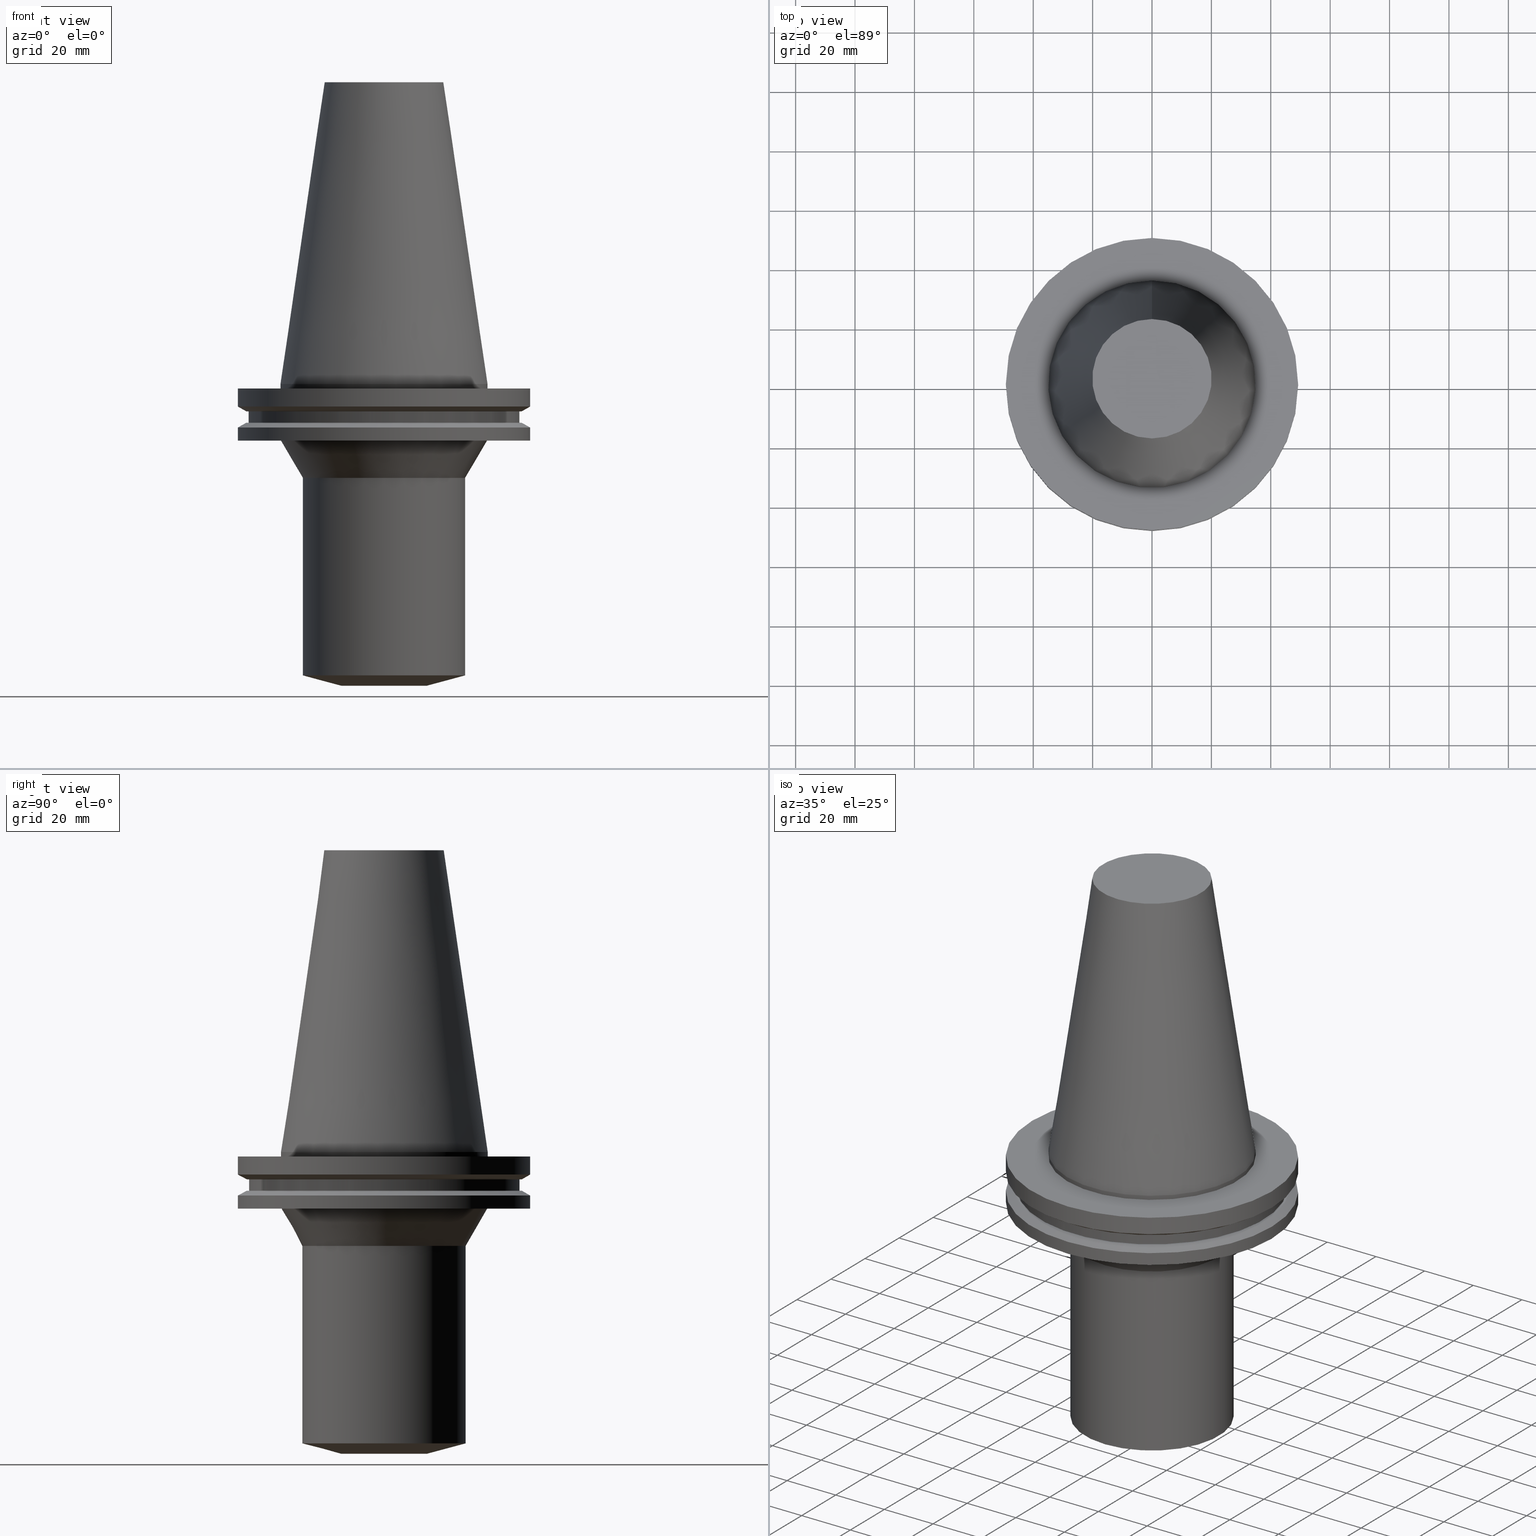
[diagram: canonical four-view strip — front | top / right | iso, engineering-drawing reading convention]
A machine part, canonical four-view strip (front | top / right | iso — engineering-drawing reading convention). The complete STEP part file that produces these views, byte-faithful:
ISO-10303-21;
HEADER;
FILE_DESCRIPTION((''),'1');
FILE_NAME('V:/01_Dxf_Field-HP\X2\FF71FF6FFF8CFF9F5916\X0\2013/BIGKAISER\X2\FF76FF80FF9BFF78FF9E63B28F095206\X0\_BKUS_201803/BCV50Y-BSL/BCV50Y-BSL1.000-4.stp','2018-03-13T06:52:18',(''),(''),'Spatial Interop R21 SP3','Kubotek KeyCreator 2011 V10.0.2 (22737)',' ');
FILE_SCHEMA(('automotive_design'));
ENDSEC;
DATA;
#1=MECHANICAL_DESIGN_GEOMETRIC_PRESENTATION_REPRESENTATION(' ',(#10,#11,#12,#13,#14,#15,#16,#17,#18,#19,#20,#21,#22,#23,#24,#25,#26,#27,#28,#29,#30,#31,#32,#33,#34,#35,#36,#37,#38,#39,#40,#41),#6);
#2=PRODUCT_DEFINITION_CONTEXT('',#42,'design');
#3=APPLICATION_PROTOCOL_DEFINITION('INTERNATIONAL STANDARD','automotive_design',1994,#42);
#4=PRODUCT_CATEGORY_RELATIONSHIP('NONE','NONE',#43,#44);
#5=SHAPE_DEFINITION_REPRESENTATION(#45,#46);
#6= (GEOMETRIC_REPRESENTATION_CONTEXT(3)GLOBAL_UNCERTAINTY_ASSIGNED_CONTEXT((#49))GLOBAL_UNIT_ASSIGNED_CONTEXT((#51,#52,#53))REPRESENTATION_CONTEXT('NONE','WORKSPACE'));
#10=STYLED_ITEM('',(#55,#56),#57);
#11=STYLED_ITEM('',(#58),#59);
#12=STYLED_ITEM('',(#60,#61),#62);
#13=STYLED_ITEM('',(#63),#64);
#14=STYLED_ITEM('',(#65),#66);
#15=STYLED_ITEM('',(#67),#68);
#16=STYLED_ITEM('',(#69),#70);
#17=STYLED_ITEM('',(#71,#72),#73);
#18=STYLED_ITEM('',(#74,#75),#76);
#19=STYLED_ITEM('',(#77,#78),#79);
#20=STYLED_ITEM('',(#80,#81),#82);
#21=STYLED_ITEM('',(#83),#84);
#22=STYLED_ITEM('',(#85,#86),#87);
#23=STYLED_ITEM('',(#88,#89),#90);
#24=STYLED_ITEM('',(#91),#92);
#25=STYLED_ITEM('',(#93),#94);
#26=STYLED_ITEM('',(#95,#96),#97);
#27=STYLED_ITEM('',(#98),#99);
#28=STYLED_ITEM('',(#100),#101);
#29=STYLED_ITEM('',(#102,#103),#104);
#30=STYLED_ITEM('',(#105,#106),#107);
#31=STYLED_ITEM('',(#108,#109),#110);
#32=STYLED_ITEM('',(#111,#112),#113);
#33=STYLED_ITEM('',(#114),#115);
#34=STYLED_ITEM('',(#116,#117),#118);
#35=STYLED_ITEM('',(#119),#120);
#36=STYLED_ITEM('',(#121,#122),#123);
#37=STYLED_ITEM('',(#124,#125),#126);
#38=STYLED_ITEM('',(#127),#128);
#39=STYLED_ITEM('',(#129,#130),#131);
#40=STYLED_ITEM('',(#132),#133);
#41=STYLED_ITEM('',(#134),#135);
#42=APPLICATION_CONTEXT(' ');
#43=PRODUCT_CATEGORY('part','NONE');
#44=PRODUCT_RELATED_PRODUCT_CATEGORY('detail',' ',(#136));
#45=PRODUCT_DEFINITION_SHAPE('NONE','NONE',#137);
#46=ADVANCED_BREP_SHAPE_REPRESENTATION('Unnamed[1]',(#123,#138),#6);
#49=UNCERTAINTY_MEASURE_WITH_UNIT(LENGTH_MEASURE(1.0E-006),#51,'','');
#51= (CONVERSION_BASED_UNIT('MILLIMETRE',#141)LENGTH_UNIT()NAMED_UNIT(#144));
#52= (NAMED_UNIT(#146)PLANE_ANGLE_UNIT()SI_UNIT($,.RADIAN.));
#53= (NAMED_UNIT(#146)SOLID_ANGLE_UNIT()SI_UNIT($,.STERADIAN.));
#55=PRESENTATION_STYLE_ASSIGNMENT((#152));
#56=PRESENTATION_STYLE_ASSIGNMENT((#153));
#57=ADVANCED_FACE('Unnamed[1]',(#154,#155),#156,.T.);
#58=PRESENTATION_STYLE_ASSIGNMENT((#157));
#59=EDGE_CURVE('Unnamed[1]',#158,#158,#159,.T.);
#60=PRESENTATION_STYLE_ASSIGNMENT((#160));
#61=PRESENTATION_STYLE_ASSIGNMENT((#161));
#62=ADVANCED_FACE('Unnamed[1]',(#162,#163),#164,.T.);
#63=PRESENTATION_STYLE_ASSIGNMENT((#165));
#64=EDGE_CURVE('Unnamed[1]',#166,#166,#167,.T.);
#65=PRESENTATION_STYLE_ASSIGNMENT((#168));
#66=EDGE_CURVE('Unnamed[1]',#169,#169,#170,.T.);
#67=PRESENTATION_STYLE_ASSIGNMENT((#171));
#68=EDGE_CURVE('Unnamed[1]',#172,#172,#173,.T.);
#69=PRESENTATION_STYLE_ASSIGNMENT((#174));
#70=EDGE_CURVE('Unnamed[1]',#175,#175,#176,.T.);
#71=PRESENTATION_STYLE_ASSIGNMENT((#177));
#72=PRESENTATION_STYLE_ASSIGNMENT((#178));
#73=ADVANCED_FACE('Unnamed[1]',(#179,#180),#181,.T.);
#74=PRESENTATION_STYLE_ASSIGNMENT((#182));
#75=PRESENTATION_STYLE_ASSIGNMENT((#183));
#76=ADVANCED_FACE('Unnamed[1]',(#184,#185),#186,.T.);
#77=PRESENTATION_STYLE_ASSIGNMENT((#187));
#78=PRESENTATION_STYLE_ASSIGNMENT((#188));
#79=ADVANCED_FACE('Unnamed[1]',(#189,#190),#191,.T.);
#80=PRESENTATION_STYLE_ASSIGNMENT((#192));
#81=PRESENTATION_STYLE_ASSIGNMENT((#193));
#82=ADVANCED_FACE('Unnamed[1]',(#194,#195),#196,.T.);
#83=PRESENTATION_STYLE_ASSIGNMENT((#197));
#84=EDGE_CURVE('Unnamed[1]',#198,#198,#199,.T.);
#85=PRESENTATION_STYLE_ASSIGNMENT((#200));
#86=PRESENTATION_STYLE_ASSIGNMENT((#201));
#87=ADVANCED_FACE('Unnamed[1]',(#202),#203,.T.);
#88=PRESENTATION_STYLE_ASSIGNMENT((#204));
#89=PRESENTATION_STYLE_ASSIGNMENT((#205));
#90=ADVANCED_FACE('Unnamed[1]',(#206,#207),#208,.T.);
#91=PRESENTATION_STYLE_ASSIGNMENT((#209));
#92=EDGE_CURVE('Unnamed[1]',#210,#210,#211,.T.);
#93=PRESENTATION_STYLE_ASSIGNMENT((#212));
#94=EDGE_CURVE('Unnamed[1]',#213,#213,#214,.T.);
#95=PRESENTATION_STYLE_ASSIGNMENT((#215));
#96=PRESENTATION_STYLE_ASSIGNMENT((#216));
#97=ADVANCED_FACE('Unnamed[1]',(#217,#218),#219,.T.);
#98=PRESENTATION_STYLE_ASSIGNMENT((#220));
#99=EDGE_CURVE('Unnamed[1]',#221,#221,#222,.T.);
#100=PRESENTATION_STYLE_ASSIGNMENT((#223));
#101=EDGE_CURVE('Unnamed[1]',#224,#224,#225,.T.);
#102=PRESENTATION_STYLE_ASSIGNMENT((#226));
#103=PRESENTATION_STYLE_ASSIGNMENT((#227));
#104=ADVANCED_FACE('Unnamed[1]',(#228,#229),#230,.T.);
#105=PRESENTATION_STYLE_ASSIGNMENT((#231));
#106=PRESENTATION_STYLE_ASSIGNMENT((#232));
#107=ADVANCED_FACE('Unnamed[1]',(#233,#234),#235,.T.);
#108=PRESENTATION_STYLE_ASSIGNMENT((#236));
#109=PRESENTATION_STYLE_ASSIGNMENT((#237));
#110=ADVANCED_FACE('Unnamed[1]',(#238,#239),#240,.T.);
#111=PRESENTATION_STYLE_ASSIGNMENT((#241));
#112=PRESENTATION_STYLE_ASSIGNMENT((#242));
#113=ADVANCED_FACE('Unnamed[1]',(#243,#244),#245,.T.);
#114=PRESENTATION_STYLE_ASSIGNMENT((#246));
#115=EDGE_CURVE('Unnamed[1]',#247,#247,#248,.T.);
#116=PRESENTATION_STYLE_ASSIGNMENT((#249));
#117=PRESENTATION_STYLE_ASSIGNMENT((#250));
#118=ADVANCED_FACE('Unnamed[1]',(#251),#252,.T.);
#119=PRESENTATION_STYLE_ASSIGNMENT((#253));
#120=EDGE_CURVE('Unnamed[1]',#254,#254,#255,.T.);
#121=PRESENTATION_STYLE_ASSIGNMENT((#256));
#122=PRESENTATION_STYLE_ASSIGNMENT((#257));
#123=MANIFOLD_SOLID_BREP('Unnamed[1]',#258);
#124=PRESENTATION_STYLE_ASSIGNMENT((#259));
#125=PRESENTATION_STYLE_ASSIGNMENT((#260));
#126=ADVANCED_FACE('Unnamed[1]',(#261,#262),#263,.T.);
#127=PRESENTATION_STYLE_ASSIGNMENT((#264));
#128=EDGE_CURVE('Unnamed[1]',#265,#265,#266,.T.);
#129=PRESENTATION_STYLE_ASSIGNMENT((#267));
#130=PRESENTATION_STYLE_ASSIGNMENT((#268));
#131=ADVANCED_FACE('Unnamed[1]',(#269,#270),#271,.T.);
#132=PRESENTATION_STYLE_ASSIGNMENT((#272));
#133=EDGE_CURVE('Unnamed[1]',#273,#273,#274,.T.);
#134=PRESENTATION_STYLE_ASSIGNMENT((#275));
#135=EDGE_CURVE('Unnamed[1]',#276,#276,#277,.T.);
#136=PRODUCT('Unnamed[1]','Unnamed[1]','PART-Unnamed[1]-DESC',(#278));
#137=PRODUCT_DEFINITION('NONE','NONE',#279,#2);
#138=AXIS2_PLACEMENT_3D('',#280,#281,#282);
#141=LENGTH_MEASURE_WITH_UNIT(LENGTH_MEASURE(1.0),#283);
#144=DIMENSIONAL_EXPONENTS(1.0,0.0,0.0,0.0,0.0,0.0,0.0);
#146=DIMENSIONAL_EXPONENTS(0.0,0.0,0.0,0.0,0.0,0.0,0.0);
#152=SURFACE_STYLE_USAGE(.BOTH.,#284);
#153=CURVE_STYLE('',#285,POSITIVE_LENGTH_MEASURE(1000.0),#286);
#154=FACE_OUTER_BOUND('',#287,.T.);
#155=FACE_BOUND('',#288,.T.);
#156=PLANE('',#289);
#157=CURVE_STYLE('',#290,POSITIVE_LENGTH_MEASURE(1000.0),#291);
#158=VERTEX_POINT('',#292);
#159=CIRCLE('',#293,46.43053755);
#160=SURFACE_STYLE_USAGE(.BOTH.,#294);
#161=CURVE_STYLE('',#295,POSITIVE_LENGTH_MEASURE(1000.0),#296);
#162=FACE_BOUND('',#297,.T.);
#163=FACE_OUTER_BOUND('',#298,.T.);
#164=PLANE('',#299);
#165=CURVE_STYLE('',#300,POSITIVE_LENGTH_MEASURE(1000.0),#301);
#166=VERTEX_POINT('',#302);
#167=CIRCLE('',#303,34.7457458785644);
#168=CURVE_STYLE('',#304,POSITIVE_LENGTH_MEASURE(1000.0),#305);
#169=VERTEX_POINT('',#306);
#170=CIRCLE('',#307,49.2125);
#171=CURVE_STYLE('',#308,POSITIVE_LENGTH_MEASURE(1000.0),#309);
#172=VERTEX_POINT('',#310);
#173=CIRCLE('',#311,49.2125);
#174=CURVE_STYLE('',#312,POSITIVE_LENGTH_MEASURE(1000.0),#313);
#175=VERTEX_POINT('',#314);
#176=CIRCLE('',#315,49.2125);
#177=SURFACE_STYLE_USAGE(.BOTH.,#316);
#178=CURVE_STYLE('',#317,POSITIVE_LENGTH_MEASURE(1000.0),#318);
#179=FACE_BOUND('',#319,.T.);
#180=FACE_OUTER_BOUND('',#320,.T.);
#181=PLANE('',#321);
#182=SURFACE_STYLE_USAGE(.BOTH.,#322);
#183=CURVE_STYLE('',#323,POSITIVE_LENGTH_MEASURE(1000.0),#324);
#184=FACE_BOUND('',#325,.T.);
#185=FACE_BOUND('',#326,.T.);
#186=CYLINDRICAL_SURFACE('',#327,45.645);
#187=SURFACE_STYLE_USAGE(.BOTH.,#328);
#188=CURVE_STYLE('',#329,POSITIVE_LENGTH_MEASURE(1000.0),#330);
#189=FACE_BOUND('',#331,.T.);
#190=FACE_BOUND('',#332,.T.);
#191=CONICAL_SURFACE('',#333,20.999999999904,1.30899693900024);
#192=SURFACE_STYLE_USAGE(.BOTH.,#334);
#193=CURVE_STYLE('',#335,POSITIVE_LENGTH_MEASURE(1000.0),#336);
#194=FACE_BOUND('',#337,.T.);
#195=FACE_BOUND('',#338,.T.);
#196=CONICAL_SURFACE('',#339,47.821518775,1.04719755103024);
#197=CURVE_STYLE('',#340,POSITIVE_LENGTH_MEASURE(1000.0),#341);
#198=VERTEX_POINT('',#342);
#199=CIRCLE('',#343,20.1083333297217);
#200=SURFACE_STYLE_USAGE(.BOTH.,#344);
#201=CURVE_STYLE('',#345,POSITIVE_LENGTH_MEASURE(1000.0),#346);
#202=FACE_OUTER_BOUND('',#347,.T.);
#203=PLANE('',#348);
#204=SURFACE_STYLE_USAGE(.BOTH.,#349);
#205=CURVE_STYLE('',#350,POSITIVE_LENGTH_MEASURE(1000.0),#351);
#206=FACE_BOUND('',#352,.T.);
#207=FACE_BOUND('',#353,.T.);
#208=CYLINDRICAL_SURFACE('',#354,49.2125);
#209=CURVE_STYLE('',#355,POSITIVE_LENGTH_MEASURE(1000.0),#356);
#210=VERTEX_POINT('',#357);
#211=CIRCLE('',#358,14.5000000000146);
#212=CURVE_STYLE('',#359,POSITIVE_LENGTH_MEASURE(1000.0),#360);
#213=VERTEX_POINT('',#361);
#214=CIRCLE('',#362,45.645);
#215=SURFACE_STYLE_USAGE(.BOTH.,#363);
#216=CURVE_STYLE('',#364,POSITIVE_LENGTH_MEASURE(1000.0),#365);
#217=FACE_BOUND('',#366,.T.);
#218=FACE_BOUND('',#367,.T.);
#219=CONICAL_SURFACE('',#368,27.5166666648609,0.144812498273746);
#220=CURVE_STYLE('',#369,POSITIVE_LENGTH_MEASURE(1000.0),#370);
#221=VERTEX_POINT('',#371);
#222=CIRCLE('',#372,34.925);
#223=CURVE_STYLE('',#373,POSITIVE_LENGTH_MEASURE(1000.0),#374);
#224=VERTEX_POINT('',#375);
#225=CIRCLE('',#376,46.43053755);
#226=SURFACE_STYLE_USAGE(.BOTH.,#377);
#227=CURVE_STYLE('',#378,POSITIVE_LENGTH_MEASURE(1000.0),#379);
#228=FACE_OUTER_BOUND('',#380,.T.);
#229=FACE_BOUND('',#381,.T.);
#230=PLANE('',#382);
#231=SURFACE_STYLE_USAGE(.BOTH.,#383);
#232=CURVE_STYLE('',#384,POSITIVE_LENGTH_MEASURE(1000.0),#385);
#233=FACE_BOUND('',#386,.T.);
#234=FACE_BOUND('',#387,.T.);
#235=CYLINDRICAL_SURFACE('',#388,49.2125);
#236=SURFACE_STYLE_USAGE(.BOTH.,#389);
#237=CURVE_STYLE('',#390,POSITIVE_LENGTH_MEASURE(1000.0),#391);
#238=FACE_BOUND('',#392,.T.);
#239=FACE_BOUND('',#393,.T.);
#240=CYLINDRICAL_SURFACE('',#394,27.4999999999373);
#241=SURFACE_STYLE_USAGE(.BOTH.,#395);
#242=CURVE_STYLE('',#396,POSITIVE_LENGTH_MEASURE(1000.0),#397);
#243=FACE_BOUND('',#398,.T.);
#244=FACE_BOUND('',#399,.T.);
#245=CONICAL_SURFACE('',#400,31.1228729393228,0.523598775602878);
#246=CURVE_STYLE('',#401,POSITIVE_LENGTH_MEASURE(1000.0),#402);
#247=VERTEX_POINT('',#403);
#248=CIRCLE('',#404,49.2125);
#249=SURFACE_STYLE_USAGE(.BOTH.,#405);
#250=CURVE_STYLE('',#406,POSITIVE_LENGTH_MEASURE(1000.0),#407);
#251=FACE_OUTER_BOUND('',#408,.T.);
#252=PLANE('',#409);
#253=CURVE_STYLE('',#410,POSITIVE_LENGTH_MEASURE(1000.0),#411);
#254=VERTEX_POINT('',#412);
#255=CIRCLE('',#413,27.4999999997934);
#256=SURFACE_STYLE_USAGE(.BOTH.,#414);
#257=CURVE_STYLE('',#415,POSITIVE_LENGTH_MEASURE(1000.0),#416);
#258=CLOSED_SHELL('',(#118,#97,#126,#104,#107,#82,#73,#76,#57,#131,#90,#62,#113,#110,#79,#87));
#259=SURFACE_STYLE_USAGE(.BOTH.,#417);
#260=CURVE_STYLE('',#418,POSITIVE_LENGTH_MEASURE(1000.0),#419);
#261=FACE_BOUND('',#420,.T.);
#262=FACE_BOUND('',#421,.T.);
#263=CYLINDRICAL_SURFACE('',#422,34.925);
#264=CURVE_STYLE('',#423,POSITIVE_LENGTH_MEASURE(1000.0),#424);
#265=VERTEX_POINT('',#425);
#266=CIRCLE('',#426,45.645);
#267=SURFACE_STYLE_USAGE(.BOTH.,#427);
#268=CURVE_STYLE('',#428,POSITIVE_LENGTH_MEASURE(1000.0),#429);
#269=FACE_BOUND('',#430,.T.);
#270=FACE_BOUND('',#431,.T.);
#271=CONICAL_SURFACE('',#432,47.821518775,1.04719755103023);
#272=CURVE_STYLE('',#433,POSITIVE_LENGTH_MEASURE(1000.0),#434);
#273=VERTEX_POINT('',#435);
#274=CIRCLE('',#436,27.5000000000812);
#275=CURVE_STYLE('',#437,POSITIVE_LENGTH_MEASURE(1000.0),#438);
#276=VERTEX_POINT('',#439);
#277=CIRCLE('',#440,34.925);
#278=PRODUCT_CONTEXT('',#42,'mechanical');
#279=PRODUCT_DEFINITION_FORMATION_WITH_SPECIFIED_SOURCE(' ','NONE',#136,.NOT_KNOWN.);
#280=CARTESIAN_POINT('',(0.0,0.0,0.0));
#281=DIRECTION('',(0.0,0.0,1.0));
#282=DIRECTION('',(1.0,0.0,0.0));
#283= (NAMED_UNIT(#144)LENGTH_UNIT()SI_UNIT(.MILLI.,.METRE.));
#284=SURFACE_SIDE_STYLE('',(#442));
#285=DRAUGHTING_PRE_DEFINED_CURVE_FONT('continuous');
#286=COLOUR_RGB('',0.0,1.0,0.0);
#287=EDGE_LOOP('',(#443));
#288=EDGE_LOOP('',(#444));
#289=AXIS2_PLACEMENT_3D('',#445,#446,#447);
#290=DRAUGHTING_PRE_DEFINED_CURVE_FONT('continuous');
#291=COLOUR_RGB('',0.0,1.0,0.0);
#292=CARTESIAN_POINT('',(5.63337527607782E-016,46.43053755,-9.2));
#293=AXIS2_PLACEMENT_3D('',#448,#449,#450);
#294=SURFACE_SIDE_STYLE('',(#451));
#295=DRAUGHTING_PRE_DEFINED_CURVE_FONT('continuous');
#296=COLOUR_RGB('',0.0,1.0,0.0);
#297=EDGE_LOOP('',(#452));
#298=EDGE_LOOP('',(#453));
#299=AXIS2_PLACEMENT_3D('',#454,#455,#456);
#300=DRAUGHTING_PRE_DEFINED_CURVE_FONT('continuous');
#301=COLOUR_RGB('',0.0,1.0,0.0);
#302=CARTESIAN_POINT('',(1.16647607618786E-015,34.7457458785644,-19.0500000000001));
#303=AXIS2_PLACEMENT_3D('',#457,#458,#459);
#304=DRAUGHTING_PRE_DEFINED_CURVE_FONT('continuous');
#305=COLOUR_RGB('',0.0,1.0,0.0);
#306=CARTESIAN_POINT('',(9.18485099360509E-017,49.2125,-1.49999999999999));
#307=AXIS2_PLACEMENT_3D('',#460,#461,#462);
#308=DRAUGHTING_PRE_DEFINED_CURVE_FONT('continuous');
#309=COLOUR_RGB('',0.0,1.0,0.0);
#310=CARTESIAN_POINT('',(8.96819062732941E-016,49.2125,-14.64616677));
#311=AXIS2_PLACEMENT_3D('',#463,#464,#465);
#312=DRAUGHTING_PRE_DEFINED_CURVE_FONT('continuous');
#313=COLOUR_RGB('',0.0,1.0,0.0);
#314=CARTESIAN_POINT('',(1.16647607618785E-015,49.2125,-19.05));
#315=AXIS2_PLACEMENT_3D('',#466,#467,#468);
#316=SURFACE_SIDE_STYLE('',(#469));
#317=DRAUGHTING_PRE_DEFINED_CURVE_FONT('continuous');
#318=COLOUR_RGB('',0.0,1.0,0.0);
#319=EDGE_LOOP('',(#470));
#320=EDGE_LOOP('',(#471));
#321=AXIS2_PLACEMENT_3D('',#472,#473,#474);
#322=SURFACE_SIDE_STYLE('',(#475));
#323=DRAUGHTING_PRE_DEFINED_CURVE_FONT('continuous');
#324=COLOUR_RGB('',0.0,1.0,0.0);
#325=EDGE_LOOP('',(#476));
#326=EDGE_LOOP('',(#477));
#327=AXIS2_PLACEMENT_3D('',#478,#479,#480);
#328=SURFACE_SIDE_STYLE('',(#481));
#329=DRAUGHTING_PRE_DEFINED_CURVE_FONT('continuous');
#330=COLOUR_RGB('',0.0,1.0,0.0);
#331=EDGE_LOOP('',(#482));
#332=EDGE_LOOP('',(#483));
#333=AXIS2_PLACEMENT_3D('',#484,#485,#486);
#334=SURFACE_SIDE_STYLE('',(#487));
#335=DRAUGHTING_PRE_DEFINED_CURVE_FONT('continuous');
#336=COLOUR_RGB('',0.0,1.0,0.0);
#337=EDGE_LOOP('',(#488));
#338=EDGE_LOOP('',(#489));
#339=AXIS2_PLACEMENT_3D('',#490,#491,#492);
#340=DRAUGHTING_PRE_DEFINED_CURVE_FONT('continuous');
#341=COLOUR_RGB('',0.0,1.0,0.0);
#342=CARTESIAN_POINT('',(-6.22120573966855E-015,20.1083333297217,101.6));
#343=AXIS2_PLACEMENT_3D('',#493,#494,#495);
#344=SURFACE_SIDE_STYLE('',(#496));
#345=DRAUGHTING_PRE_DEFINED_CURVE_FONT('continuous');
#346=COLOUR_RGB('',0.0,1.0,0.0);
#347=EDGE_LOOP('',(#497));
#348=AXIS2_PLACEMENT_3D('',#498,#499,#500);
#349=SURFACE_SIDE_STYLE('',(#501));
#350=DRAUGHTING_PRE_DEFINED_CURVE_FONT('continuous');
#351=COLOUR_RGB('',0.0,1.0,0.0);
#352=EDGE_LOOP('',(#502));
#353=EDGE_LOOP('',(#503));
#354=AXIS2_PLACEMENT_3D('',#504,#505,#506);
#355=DRAUGHTING_PRE_DEFINED_CURVE_FONT('continuous');
#356=COLOUR_RGB('',0.0,1.0,0.0);
#357=CARTESIAN_POINT('',(6.22120573966849E-015,14.5000000000146,-101.599999999999));
#358=AXIS2_PLACEMENT_3D('',#507,#508,#509);
#359=DRAUGHTING_PRE_DEFINED_CURVE_FONT('continuous');
#360=COLOUR_RGB('',0.0,1.0,0.0);
#361=CARTESIAN_POINT('',(5.63337527607782E-016,45.645,-9.2));
#362=AXIS2_PLACEMENT_3D('',#510,#511,#512);
#363=SURFACE_SIDE_STYLE('',(#513));
#364=DRAUGHTING_PRE_DEFINED_CURVE_FONT('continuous');
#365=COLOUR_RGB('',0.0,1.0,0.0);
#366=EDGE_LOOP('',(#514));
#367=EDGE_LOOP('',(#515));
#368=AXIS2_PLACEMENT_3D('',#516,#517,#518);
#369=DRAUGHTING_PRE_DEFINED_CURVE_FONT('continuous');
#370=COLOUR_RGB('',0.0,1.0,0.0);
#371=CARTESIAN_POINT('',(9.18485099360511E-017,34.925,-1.5));
#372=AXIS2_PLACEMENT_3D('',#519,#520,#521);
#373=DRAUGHTING_PRE_DEFINED_CURVE_FONT('continuous');
#374=COLOUR_RGB('',0.0,1.0,0.0);
#375=CARTESIAN_POINT('',(7.98469713044073E-016,46.43053755,-13.04));
#376=AXIS2_PLACEMENT_3D('',#522,#523,#524);
#377=SURFACE_SIDE_STYLE('',(#525));
#378=DRAUGHTING_PRE_DEFINED_CURVE_FONT('continuous');
#379=COLOUR_RGB('',0.0,1.0,0.0);
#380=EDGE_LOOP('',(#526));
#381=EDGE_LOOP('',(#527));
#382=AXIS2_PLACEMENT_3D('',#528,#529,#530);
#383=SURFACE_SIDE_STYLE('',(#531));
#384=DRAUGHTING_PRE_DEFINED_CURVE_FONT('continuous');
#385=COLOUR_RGB('',0.0,1.0,0.0);
#386=EDGE_LOOP('',(#532));
#387=EDGE_LOOP('',(#533));
#388=AXIS2_PLACEMENT_3D('',#534,#535,#536);
#389=SURFACE_SIDE_STYLE('',(#537));
#390=DRAUGHTING_PRE_DEFINED_CURVE_FONT('continuous');
#391=COLOUR_RGB('',0.0,1.0,0.0);
#392=EDGE_LOOP('',(#538));
#393=EDGE_LOOP('',(#539));
#394=AXIS2_PLACEMENT_3D('',#540,#541,#542);
#395=SURFACE_SIDE_STYLE('',(#543));
#396=DRAUGHTING_PRE_DEFINED_CURVE_FONT('continuous');
#397=COLOUR_RGB('',0.0,1.0,0.0);
#398=EDGE_LOOP('',(#544));
#399=EDGE_LOOP('',(#545));
#400=AXIS2_PLACEMENT_3D('',#546,#547,#548);
#401=DRAUGHTING_PRE_DEFINED_CURVE_FONT('continuous');
#402=COLOUR_RGB('',0.0,1.0,0.0);
#403=CARTESIAN_POINT('',(4.64988177918915E-016,49.2125,-7.59383323));
#404=AXIS2_PLACEMENT_3D('',#549,#550,#551);
#405=SURFACE_SIDE_STYLE('',(#552));
#406=DRAUGHTING_PRE_DEFINED_CURVE_FONT('continuous');
#407=COLOUR_RGB('',0.0,1.0,0.0);
#408=EDGE_LOOP('',(#553));
#409=AXIS2_PLACEMENT_3D('',#554,#555,#556);
#410=DRAUGHTING_PRE_DEFINED_CURVE_FONT('continuous');
#411=COLOUR_RGB('',0.0,1.0,0.0);
#412=CARTESIAN_POINT('',(6.00791271112677E-015,27.4999999997934,-98.1166604985162));
#413=AXIS2_PLACEMENT_3D('',#557,#558,#559);
#414=SURFACE_SIDE_STYLE('',(#560));
#415=DRAUGHTING_PRE_DEFINED_CURVE_FONT('continuous');
#416=COLOUR_RGB('',0.0,1.0,0.0);
#417=SURFACE_SIDE_STYLE('',(#561));
#418=DRAUGHTING_PRE_DEFINED_CURVE_FONT('continuous');
#419=COLOUR_RGB('',0.0,1.0,0.0);
#420=EDGE_LOOP('',(#562));
#421=EDGE_LOOP('',(#563));
#422=AXIS2_PLACEMENT_3D('',#564,#565,#566);
#423=DRAUGHTING_PRE_DEFINED_CURVE_FONT('continuous');
#424=COLOUR_RGB('',0.0,1.0,0.0);
#425=CARTESIAN_POINT('',(7.98469713044073E-016,45.645,-13.04));
#426=AXIS2_PLACEMENT_3D('',#567,#568,#569);
#427=SURFACE_SIDE_STYLE('',(#570));
#428=DRAUGHTING_PRE_DEFINED_CURVE_FONT('continuous');
#429=COLOUR_RGB('',0.0,1.0,0.0);
#430=EDGE_LOOP('',(#571));
#431=EDGE_LOOP('',(#572));
#432=AXIS2_PLACEMENT_3D('',#573,#574,#575);
#433=DRAUGHTING_PRE_DEFINED_CURVE_FONT('continuous');
#434=COLOUR_RGB('',0.0,1.0,0.0);
#435=CARTESIAN_POINT('',(1.93494194266097E-015,27.5000000000812,-31.6000000001331));
#436=AXIS2_PLACEMENT_3D('',#576,#577,#578);
#437=DRAUGHTING_PRE_DEFINED_CURVE_FONT('continuous');
#438=COLOUR_RGB('',0.0,1.0,0.0);
#439=CARTESIAN_POINT('',(-4.30483861169435E-031,34.925,4.27707894602213E-015));
#440=AXIS2_PLACEMENT_3D('',#579,#580,#581);
#442=SURFACE_STYLE_FILL_AREA(#582);
#443=ORIENTED_EDGE('',*,*,#101,.F.);
#444=ORIENTED_EDGE('',*,*,#128,.T.);
#445=CARTESIAN_POINT('',(7.98469713044073E-016,46.037768775,-13.04));
#446=DIRECTION('',(-6.12323399573677E-017,-1.22464679914735E-016,1.0));
#447=DIRECTION('',(1.23259516440783E-032,-1.0,-1.22464679914735E-016));
#448=CARTESIAN_POINT('',(5.63337527607783E-016,1.12667505521557E-015,-9.2));
#449=DIRECTION('',(6.12323399573677E-017,1.22464679914738E-016,-1.0));
#450=DIRECTION('',(-1.23259516440814E-032,1.0,1.22464679914738E-016));
#451=SURFACE_STYLE_FILL_AREA(#583);
#452=ORIENTED_EDGE('',*,*,#64,.F.);
#453=ORIENTED_EDGE('',*,*,#70,.T.);
#454=CARTESIAN_POINT('',(1.16647607618786E-015,41.9791229392822,-19.0500000000001));
#455=DIRECTION('',(6.12323399573677E-017,6.9986431351094E-015,-1.0));
#456=DIRECTION('',(-4.33370448420085E-031,1.0,6.9986431351094E-015));
#457=CARTESIAN_POINT('',(1.16647607618786E-015,2.33295215237572E-015,-19.0500000000001));
#458=DIRECTION('',(6.12323399573676E-017,1.22464679914739E-016,-1.0));
#459=DIRECTION('',(-1.23259516440733E-032,1.0,1.2246467991474E-016));
#460=CARTESIAN_POINT('',(9.18485099360515E-017,1.83697019872103E-016,-1.5));
#461=DIRECTION('',(6.12323399573677E-017,1.22464679914777E-016,-1.0));
#462=DIRECTION('',(-1.23259516440769E-032,1.0,1.22464679914777E-016));
#463=CARTESIAN_POINT('',(8.96819062732942E-016,1.79363812546588E-015,-14.64616677));
#464=DIRECTION('',(6.12323399573677E-017,1.22464679914777E-016,-1.0));
#465=DIRECTION('',(-1.23259516440769E-032,1.0,1.22464679914777E-016));
#466=CARTESIAN_POINT('',(1.16647607618785E-015,2.33295215237571E-015,-19.05));
#467=DIRECTION('',(6.12323399573677E-017,1.22464679914777E-016,-1.0));
#468=DIRECTION('',(-1.23259516440769E-032,1.0,1.22464679914777E-016));
#469=SURFACE_STYLE_FILL_AREA(#584);
#470=ORIENTED_EDGE('',*,*,#94,.F.);
#471=ORIENTED_EDGE('',*,*,#59,.T.);
#472=CARTESIAN_POINT('',(5.63337527607782E-016,46.037768775,-9.2));
#473=DIRECTION('',(6.12323399573677E-017,1.22464679914735E-016,-1.0));
#474=DIRECTION('',(-1.23259516440783E-032,1.0,1.22464679914735E-016));
#475=SURFACE_STYLE_FILL_AREA(#585);
#476=ORIENTED_EDGE('',*,*,#128,.F.);
#477=ORIENTED_EDGE('',*,*,#94,.T.);
#478=CARTESIAN_POINT('',(6.80903620325929E-016,1.36180724065186E-015,-11.12));
#479=DIRECTION('',(6.12323399573677E-017,1.22464679914751E-016,-1.0));
#480=DIRECTION('',(-1.23259516440755E-032,1.0,1.22464679914751E-016));
#481=SURFACE_STYLE_FILL_AREA(#586);
#482=ORIENTED_EDGE('',*,*,#92,.F.);
#483=ORIENTED_EDGE('',*,*,#120,.T.);
#484=CARTESIAN_POINT('',(6.11455922539763E-015,1.22291184507953E-014,-99.8583302492575));
#485=DIRECTION('',(-6.12323399573677E-017,-1.22464679914715E-016,1.0));
#486=DIRECTION('',(-1.23259516440749E-032,1.0,1.22464679914715E-016));
#487=SURFACE_STYLE_FILL_AREA(#587);
#488=ORIENTED_EDGE('',*,*,#59,.F.);
#489=ORIENTED_EDGE('',*,*,#115,.T.);
#490=CARTESIAN_POINT('',(5.14162852763349E-016,1.0283257055267E-015,-8.39691661500001));
#491=DIRECTION('',(-6.12323399573677E-017,-1.22464679914758E-016,1.0));
#492=DIRECTION('',(-1.23259516440753E-032,1.0,1.22464679914758E-016));
#493=CARTESIAN_POINT('',(-6.22120573966855E-015,-1.24424114793371E-014,101.6));
#494=DIRECTION('',(6.12323399573676E-017,1.22464679914808E-016,-1.0));
#495=DIRECTION('',(-1.23259516440824E-032,1.0,1.22464679914808E-016));
#496=SURFACE_STYLE_FILL_AREA(#588);
#497=ORIENTED_EDGE('',*,*,#92,.T.);
#498=CARTESIAN_POINT('',(6.22120573966849E-015,7.2500000000073,-101.599999999999));
#499=DIRECTION('',(6.12323399573677E-017,1.22464679914735E-016,-1.0));
#500=DIRECTION('',(-1.23259516440783E-032,1.0,1.22464679914735E-016));
#501=SURFACE_STYLE_FILL_AREA(#589);
#502=ORIENTED_EDGE('',*,*,#70,.F.);
#503=ORIENTED_EDGE('',*,*,#68,.T.);
#504=CARTESIAN_POINT('',(1.0316475694604E-015,2.0632951389208E-015,-16.848083385));
#505=DIRECTION('',(6.12323399573677E-017,1.22464679914777E-016,-1.0));
#506=DIRECTION('',(-1.23259516440769E-032,1.0,1.22464679914777E-016));
#507=CARTESIAN_POINT('',(6.22120573966849E-015,1.2442411479337E-014,-101.599999999999));
#508=DIRECTION('',(6.12323399573677E-017,1.224646799147E-016,-1.0));
#509=DIRECTION('',(-1.23259516440783E-032,1.0,1.224646799147E-016));
#510=CARTESIAN_POINT('',(5.63337527607783E-016,1.12667505521557E-015,-9.2));
#511=DIRECTION('',(6.12323399573677E-017,1.22464679914751E-016,-1.0));
#512=DIRECTION('',(-1.23259516440755E-032,1.0,1.22464679914751E-016));
#513=SURFACE_STYLE_FILL_AREA(#590);
#514=ORIENTED_EDGE('',*,*,#135,.F.);
#515=ORIENTED_EDGE('',*,*,#84,.T.);
#516=CARTESIAN_POINT('',(-3.11060286983428E-015,-6.22120573966855E-015,50.8));
#517=DIRECTION('',(6.12323399573677E-017,1.22464679914743E-016,-1.0));
#518=DIRECTION('',(-1.23259516440772E-032,1.0,1.22464679914743E-016));
#519=CARTESIAN_POINT('',(9.18485099360515E-017,1.83697019872103E-016,-1.5));
#520=DIRECTION('',(6.12323399573677E-017,1.22464679914705E-016,-1.0));
#521=DIRECTION('',(-1.23259516440742E-032,1.0,1.22464679914705E-016));
#522=CARTESIAN_POINT('',(7.98469713044074E-016,1.59693942608815E-015,-13.04));
#523=DIRECTION('',(6.12323399573677E-017,1.22464679914738E-016,-1.0));
#524=DIRECTION('',(-1.23259516440814E-032,1.0,1.22464679914738E-016));
#525=SURFACE_STYLE_FILL_AREA(#591);
#526=ORIENTED_EDGE('',*,*,#66,.F.);
#527=ORIENTED_EDGE('',*,*,#99,.T.);
#528=CARTESIAN_POINT('',(9.1848509936051E-017,42.06875,-1.49999999999999));
#529=DIRECTION('',(-6.12323399573677E-017,-1.22464679914735E-016,1.0));
#530=DIRECTION('',(1.23259516440783E-032,-1.0,-1.22464679914735E-016));
#531=SURFACE_STYLE_FILL_AREA(#592);
#532=ORIENTED_EDGE('',*,*,#115,.F.);
#533=ORIENTED_EDGE('',*,*,#66,.T.);
#534=CARTESIAN_POINT('',(2.78418343927483E-016,5.56836687854967E-016,-4.546916615));
#535=DIRECTION('',(6.12323399573677E-017,1.22464679914777E-016,-1.0));
#536=DIRECTION('',(-1.23259516440769E-032,1.0,1.22464679914777E-016));
#537=SURFACE_STYLE_FILL_AREA(#593);
#538=ORIENTED_EDGE('',*,*,#120,.F.);
#539=ORIENTED_EDGE('',*,*,#133,.T.);
#540=CARTESIAN_POINT('',(3.97142732689387E-015,7.94285465378773E-015,-64.8583302493246));
#541=DIRECTION('',(6.12323399573677E-017,1.22464679914786E-016,-1.0));
#542=DIRECTION('',(-1.23259516440803E-032,1.0,1.22464679914786E-016));
#543=SURFACE_STYLE_FILL_AREA(#594);
#544=ORIENTED_EDGE('',*,*,#133,.F.);
#545=ORIENTED_EDGE('',*,*,#64,.T.);
#546=CARTESIAN_POINT('',(1.55070900942441E-015,3.10141801884883E-015,-25.3250000000666));
#547=DIRECTION('',(-6.12323399573677E-017,-1.22464679914737E-016,1.0));
#548=DIRECTION('',(-1.23259516440767E-032,1.0,1.22464679914737E-016));
#549=CARTESIAN_POINT('',(4.64988177918915E-016,9.29976355837831E-016,-7.59383323));
#550=DIRECTION('',(6.12323399573677E-017,1.22464679914777E-016,-1.0));
#551=DIRECTION('',(-1.23259516440769E-032,1.0,1.22464679914777E-016));
#552=SURFACE_STYLE_FILL_AREA(#595);
#553=ORIENTED_EDGE('',*,*,#84,.F.);
#554=CARTESIAN_POINT('',(-6.22120573966855E-015,10.0541666648608,101.6));
#555=DIRECTION('',(-6.12323399573677E-017,-1.22464679914735E-016,1.0));
#556=DIRECTION('',(1.23259516440783E-032,-1.0,-1.22464679914735E-016));
#557=CARTESIAN_POINT('',(6.00791271112677E-015,1.20158254222535E-014,-98.1166604985162));
#558=DIRECTION('',(6.12323399573677E-017,1.22464679914722E-016,-1.0));
#559=DIRECTION('',(-1.23259516440796E-032,1.0,1.22464679914722E-016));
#560=SURFACE_STYLE_FILL_AREA(#596);
#561=SURFACE_STYLE_FILL_AREA(#597);
#562=ORIENTED_EDGE('',*,*,#99,.F.);
#563=ORIENTED_EDGE('',*,*,#135,.T.);
#564=CARTESIAN_POINT('',(4.59242549680257E-017,9.18485099360515E-017,-0.75));
#565=DIRECTION('',(6.12323399573677E-017,1.22464679914705E-016,-1.0));
#566=DIRECTION('',(-1.23259516440742E-032,1.0,1.22464679914705E-016));
#567=CARTESIAN_POINT('',(7.98469713044074E-016,1.59693942608815E-015,-13.04));
#568=DIRECTION('',(6.12323399573677E-017,1.22464679914751E-016,-1.0));
#569=DIRECTION('',(-1.23259516440755E-032,1.0,1.22464679914751E-016));
#570=SURFACE_STYLE_FILL_AREA(#598);
#571=ORIENTED_EDGE('',*,*,#68,.F.);
#572=ORIENTED_EDGE('',*,*,#101,.T.);
#573=CARTESIAN_POINT('',(8.47644387888508E-016,1.69528877577702E-015,-13.843083385));
#574=DIRECTION('',(6.12323399573677E-017,1.22464679914758E-016,-1.0));
#575=DIRECTION('',(-1.23259516440753E-032,1.0,1.22464679914758E-016));
#576=CARTESIAN_POINT('',(1.93494194266097E-015,3.86988388532193E-015,-31.6000000001331));
#577=DIRECTION('',(6.12323399573677E-017,1.22464679914733E-016,-1.0));
#578=DIRECTION('',(-1.23259516440811E-032,1.0,1.22464679914733E-016));
#579=CARTESIAN_POINT('',(0.0,0.0,0.0));
#580=DIRECTION('',(6.12323399573677E-017,1.22464679914705E-016,-1.0));
#581=DIRECTION('',(-1.23259516440742E-032,1.0,1.22464679914705E-016));
#582=FILL_AREA_STYLE('',(#599));
#583=FILL_AREA_STYLE('',(#600));
#584=FILL_AREA_STYLE('',(#601));
#585=FILL_AREA_STYLE('',(#602));
#586=FILL_AREA_STYLE('',(#603));
#587=FILL_AREA_STYLE('',(#604));
#588=FILL_AREA_STYLE('',(#605));
#589=FILL_AREA_STYLE('',(#606));
#590=FILL_AREA_STYLE('',(#607));
#591=FILL_AREA_STYLE('',(#608));
#592=FILL_AREA_STYLE('',(#609));
#593=FILL_AREA_STYLE('',(#610));
#594=FILL_AREA_STYLE('',(#611));
#595=FILL_AREA_STYLE('',(#612));
#596=FILL_AREA_STYLE('',(#613));
#597=FILL_AREA_STYLE('',(#614));
#598=FILL_AREA_STYLE('',(#615));
#599=FILL_AREA_STYLE_COLOUR('',#616);
#600=FILL_AREA_STYLE_COLOUR('',#617);
#601=FILL_AREA_STYLE_COLOUR('',#618);
#602=FILL_AREA_STYLE_COLOUR('',#619);
#603=FILL_AREA_STYLE_COLOUR('',#620);
#604=FILL_AREA_STYLE_COLOUR('',#621);
#605=FILL_AREA_STYLE_COLOUR('',#622);
#606=FILL_AREA_STYLE_COLOUR('',#623);
#607=FILL_AREA_STYLE_COLOUR('',#624);
#608=FILL_AREA_STYLE_COLOUR('',#625);
#609=FILL_AREA_STYLE_COLOUR('',#626);
#610=FILL_AREA_STYLE_COLOUR('',#627);
#611=FILL_AREA_STYLE_COLOUR('',#628);
#612=FILL_AREA_STYLE_COLOUR('',#629);
#613=FILL_AREA_STYLE_COLOUR('',#630);
#614=FILL_AREA_STYLE_COLOUR('',#631);
#615=FILL_AREA_STYLE_COLOUR('',#632);
#616=COLOUR_RGB('',0.0,1.0,0.0);
#617=COLOUR_RGB('',0.0,1.0,0.0);
#618=COLOUR_RGB('',0.0,1.0,0.0);
#619=COLOUR_RGB('',0.0,1.0,0.0);
#620=COLOUR_RGB('',0.0,1.0,0.0);
#621=COLOUR_RGB('',0.0,1.0,0.0);
#622=COLOUR_RGB('',0.0,1.0,0.0);
#623=COLOUR_RGB('',0.0,1.0,0.0);
#624=COLOUR_RGB('',0.0,1.0,0.0);
#625=COLOUR_RGB('',0.0,1.0,0.0);
#626=COLOUR_RGB('',0.0,1.0,0.0);
#627=COLOUR_RGB('',0.0,1.0,0.0);
#628=COLOUR_RGB('',0.0,1.0,0.0);
#629=COLOUR_RGB('',0.0,1.0,0.0);
#630=COLOUR_RGB('',0.0,1.0,0.0);
#631=COLOUR_RGB('',0.0,1.0,0.0);
#632=COLOUR_RGB('',0.0,1.0,0.0);
ENDSEC;
END-ISO-10303-21;
